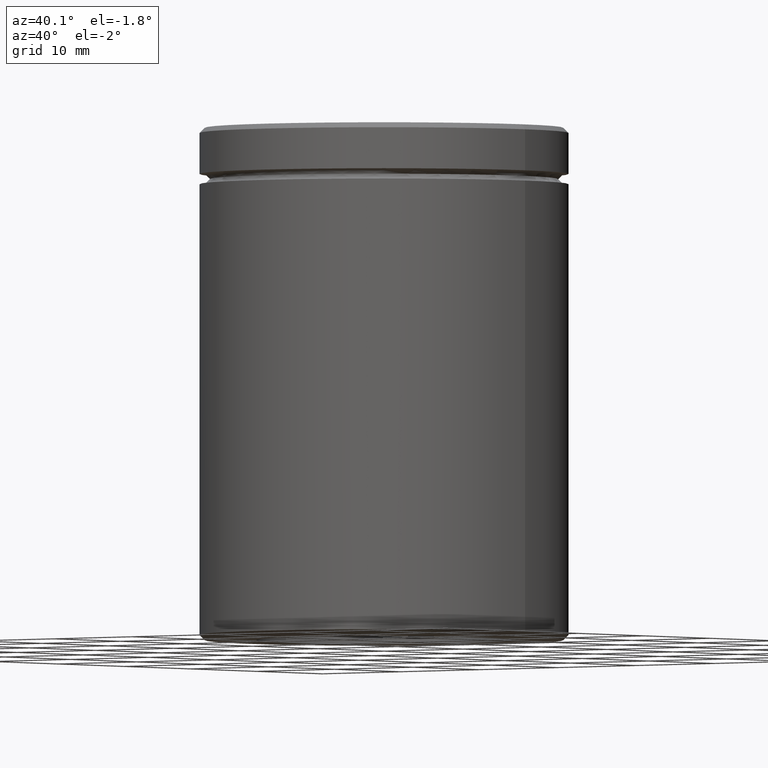
[diagram: clean part render]
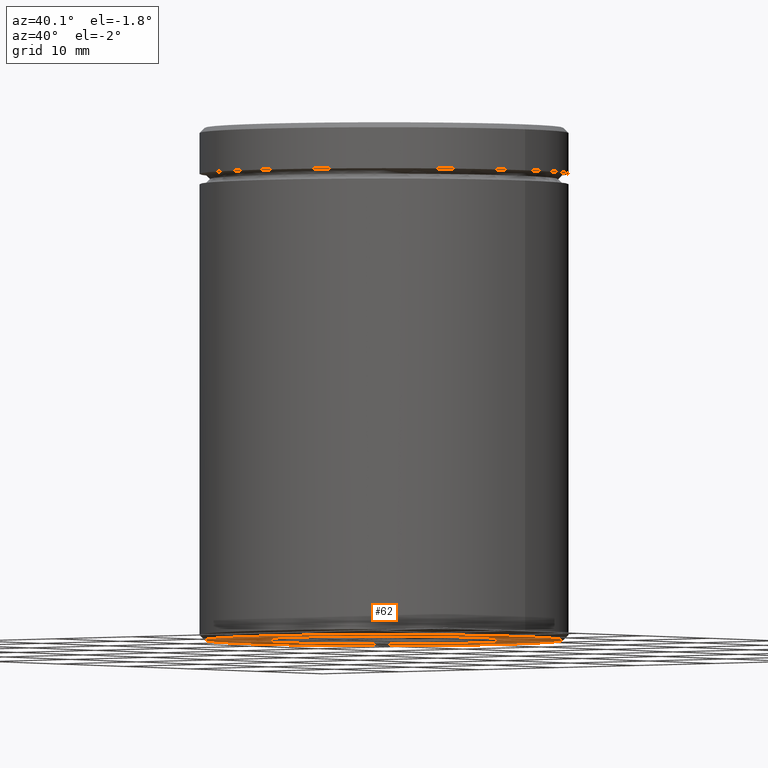
[diagram: same view with one face highlighted and labeled with its STEP entity id]
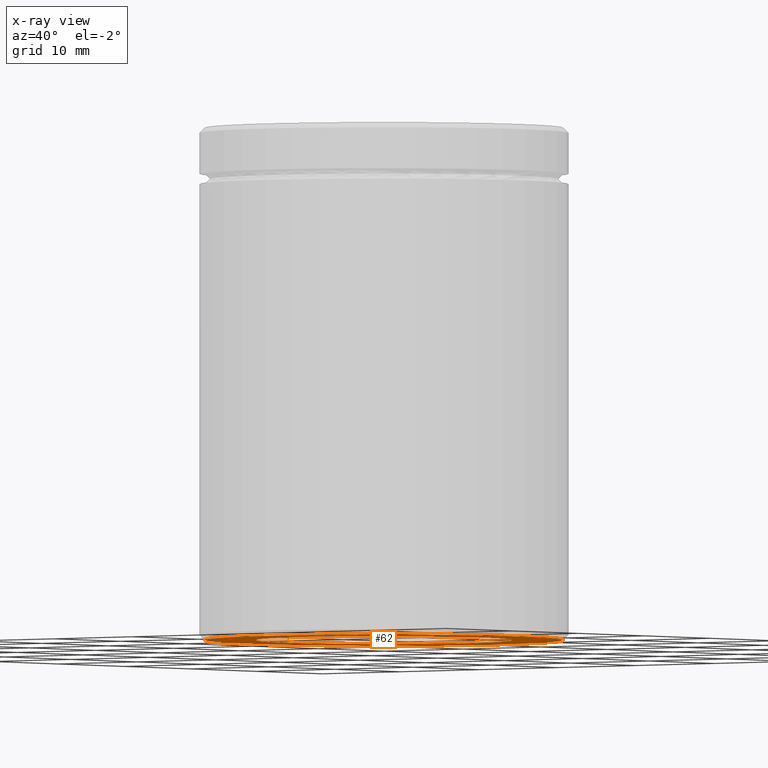
[diagram: x-ray of the same camera — body ghosted, the highlighted face saturated]
A machine part, auxiliary view. The second image highlights one B-rep face of the part: STEP entity #62.
The next image is the same camera in x-ray: the body ghosted, the highlighted face saturated — about 0% of this face is hidden behind the body in this view.
In plain terms, the highlighted planar face has unit normal (0, 0, -1).
Its self-contained STEP definition (entity closure, byte-faithful):
#42 = CARTESIAN_POINT ( 'NONE',  ( -17.50000000000000000, 2.173748068486551641E-15, -50.00000000000000000 ) ) ;
#44 = EDGE_LOOP ( 'NONE', ( #219, #242 ) ) ;
#62 = ADVANCED_FACE ( 'NONE', ( #443, #257 ), #563, .T. ) ;
#81 = DIRECTION ( 'NONE',  ( -1.000000000000000000, 0.000000000000000000, 0.000000000000000000 ) ) ;
#83 = DIRECTION ( 'NONE',  ( -1.000000000000000000, 0.000000000000000000, -0.000000000000000000 ) ) ;
#86 = CIRCLE ( 'NONE', #482, 17.50000000000000000 ) ;
#91 = DIRECTION ( 'NONE',  ( 0.000000000000000000, 0.000000000000000000, -1.000000000000000000 ) ) ;
#94 = VERTEX_POINT ( 'NONE', #517 ) ;
#130 = CARTESIAN_POINT ( 'NONE',  ( 0.000000000000000000, 0.000000000000000000, -50.00000000000000000 ) ) ;
#164 = CIRCLE ( 'NONE', #245, 17.50000000000000000 ) ;
#167 = EDGE_CURVE ( 'NONE', #509, #94, #164, .T. ) ;
#185 = CIRCLE ( 'NONE', #513, 12.50000000000000000 ) ;
#189 = ORIENTED_EDGE ( 'NONE', *, *, #331, .F. ) ;
#205 = CIRCLE ( 'NONE', #328, 12.50000000000000000 ) ;
#219 = ORIENTED_EDGE ( 'NONE', *, *, #478, .T. ) ;
#242 = ORIENTED_EDGE ( 'NONE', *, *, #167, .T. ) ;
#243 = EDGE_CURVE ( 'NONE', #499, #356, #205, .T. ) ;
#245 = AXIS2_PLACEMENT_3D ( 'NONE', #351, #519, #81 ) ;
#256 = DIRECTION ( 'NONE',  ( 0.000000000000000000, 0.000000000000000000, -1.000000000000000000 ) ) ;
#257 = FACE_BOUND ( 'NONE', #333, .T. ) ;
#297 = CARTESIAN_POINT ( 'NONE',  ( 0.000000000000000000, 18.00000000000000000, -50.00000000000000000 ) ) ;
#311 = CARTESIAN_POINT ( 'NONE',  ( -12.50000000000000000, 0.000000000000000000, -50.00000000000000000 ) ) ;
#328 = AXIS2_PLACEMENT_3D ( 'NONE', #130, #91, #452 ) ;
#331 = EDGE_CURVE ( 'NONE', #356, #499, #185, .T. ) ;
#333 = EDGE_LOOP ( 'NONE', ( #402, #189 ) ) ;
#339 = CARTESIAN_POINT ( 'NONE',  ( 12.50000000000000000, 1.530808498934191521E-15, -50.00000000000000000 ) ) ;
#351 = CARTESIAN_POINT ( 'NONE',  ( 0.000000000000000000, 0.000000000000000000, -50.00000000000000000 ) ) ;
#352 = DIRECTION ( 'NONE',  ( -1.000000000000000000, 0.000000000000000000, 0.000000000000000000 ) ) ;
#356 = VERTEX_POINT ( 'NONE', #339 ) ;
#360 = AXIS2_PLACEMENT_3D ( 'NONE', #297, #432, #83 ) ;
#402 = ORIENTED_EDGE ( 'NONE', *, *, #243, .F. ) ;
#403 = CARTESIAN_POINT ( 'NONE',  ( 0.000000000000000000, 0.000000000000000000, -50.00000000000000000 ) ) ;
#432 = DIRECTION ( 'NONE',  ( 0.000000000000000000, 0.000000000000000000, -1.000000000000000000 ) ) ;
#443 = FACE_OUTER_BOUND ( 'NONE', #44, .T. ) ;
#452 = DIRECTION ( 'NONE',  ( -1.000000000000000000, 0.000000000000000000, 0.000000000000000000 ) ) ;
#478 = EDGE_CURVE ( 'NONE', #94, #509, #86, .T. ) ;
#482 = AXIS2_PLACEMENT_3D ( 'NONE', #403, #531, #538 ) ;
#485 = CARTESIAN_POINT ( 'NONE',  ( 0.000000000000000000, 0.000000000000000000, -50.00000000000000000 ) ) ;
#499 = VERTEX_POINT ( 'NONE', #311 ) ;
#509 = VERTEX_POINT ( 'NONE', #42 ) ;
#513 = AXIS2_PLACEMENT_3D ( 'NONE', #485, #256, #352 ) ;
#517 = CARTESIAN_POINT ( 'NONE',  ( 17.50000000000000000, 0.000000000000000000, -50.00000000000000000 ) ) ;
#519 = DIRECTION ( 'NONE',  ( 0.000000000000000000, 0.000000000000000000, -1.000000000000000000 ) ) ;
#531 = DIRECTION ( 'NONE',  ( 0.000000000000000000, 0.000000000000000000, -1.000000000000000000 ) ) ;
#538 = DIRECTION ( 'NONE',  ( -1.000000000000000000, 0.000000000000000000, 0.000000000000000000 ) ) ;
#563 = PLANE ( 'NONE',  #360 ) ;